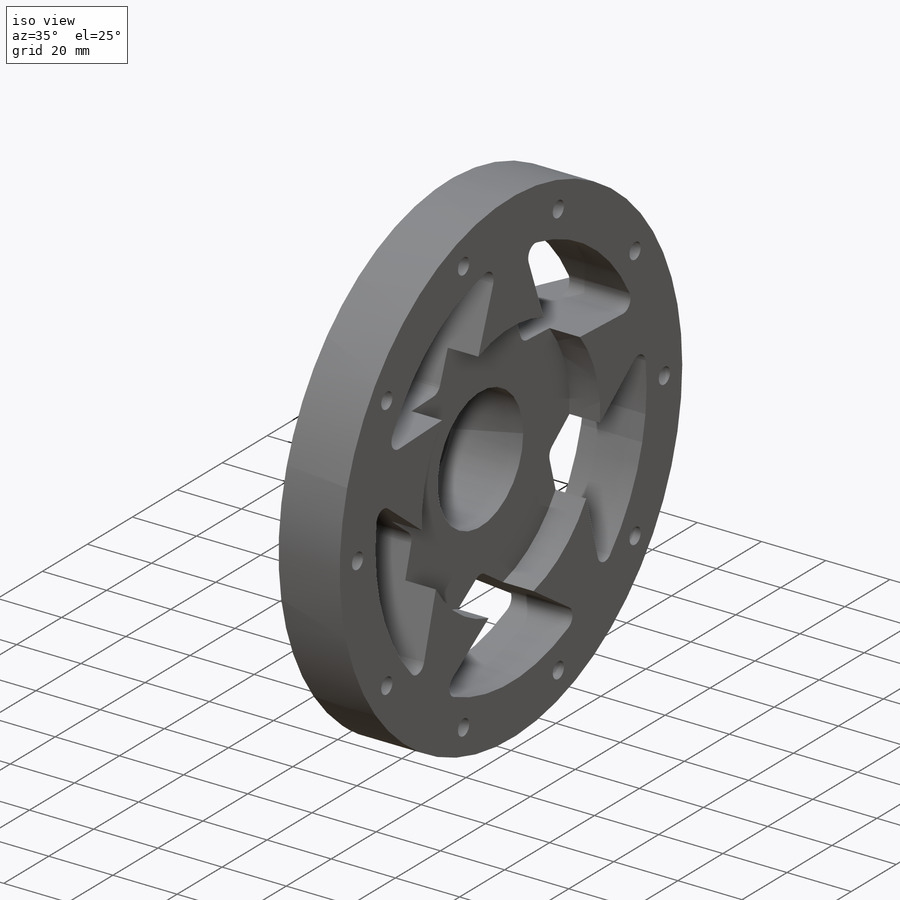
[diagram: iso view]
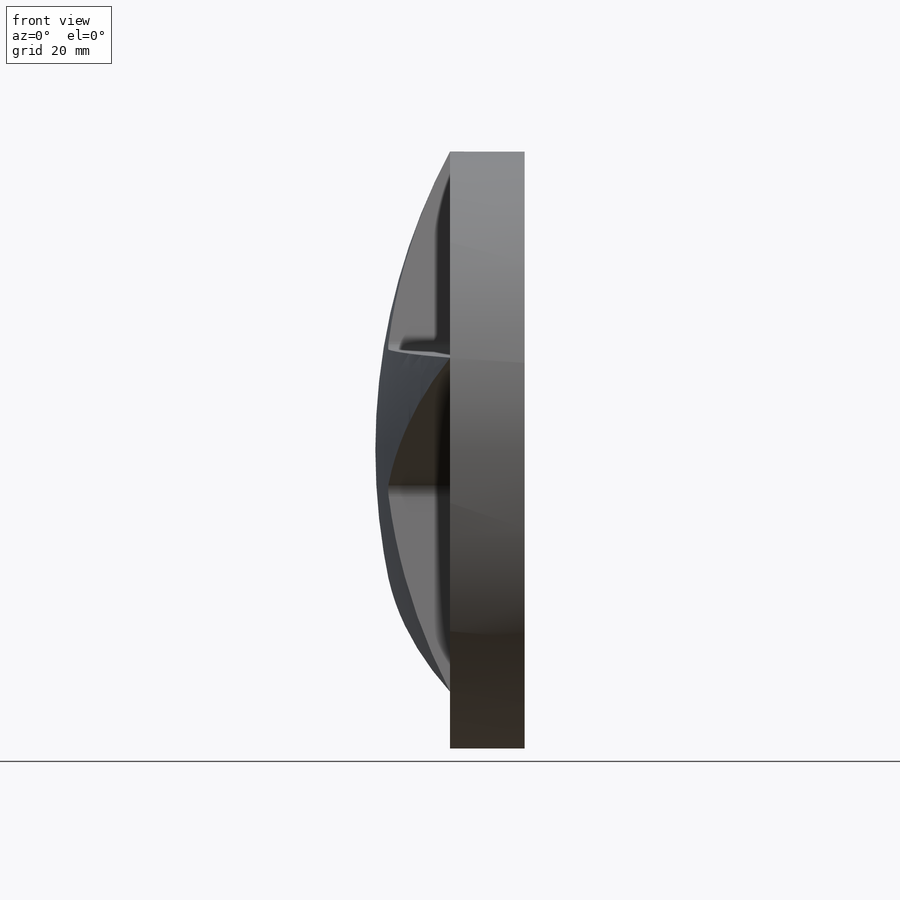
[diagram: front view]
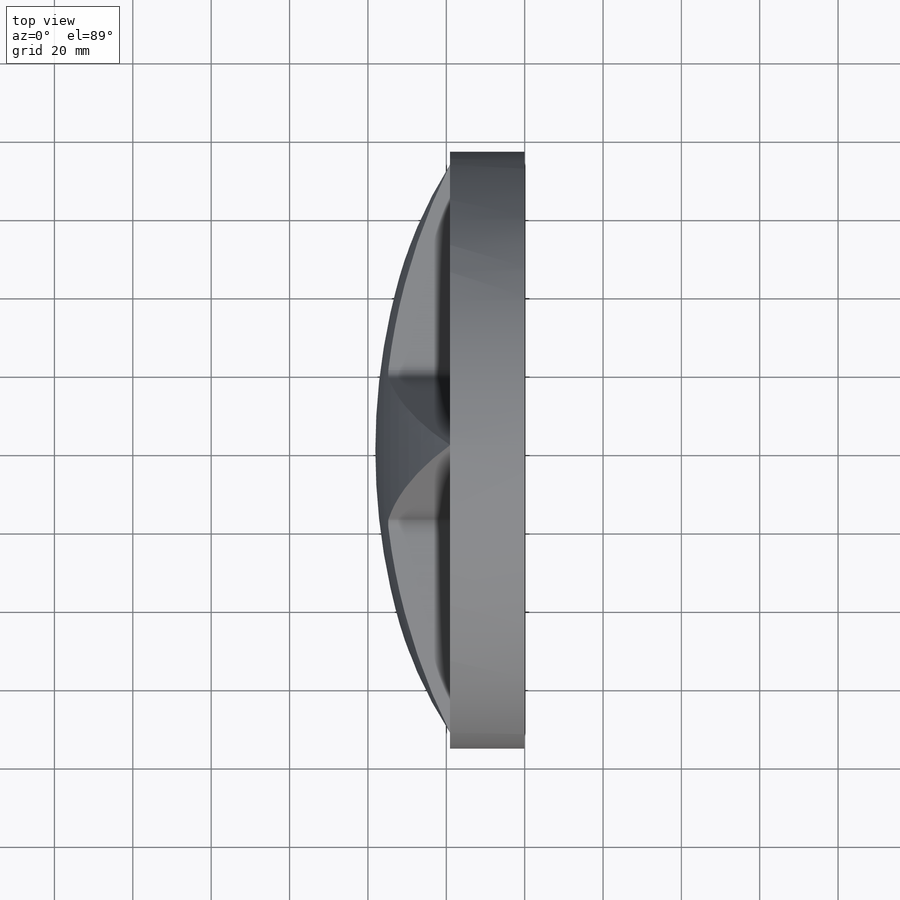
[diagram: top view]
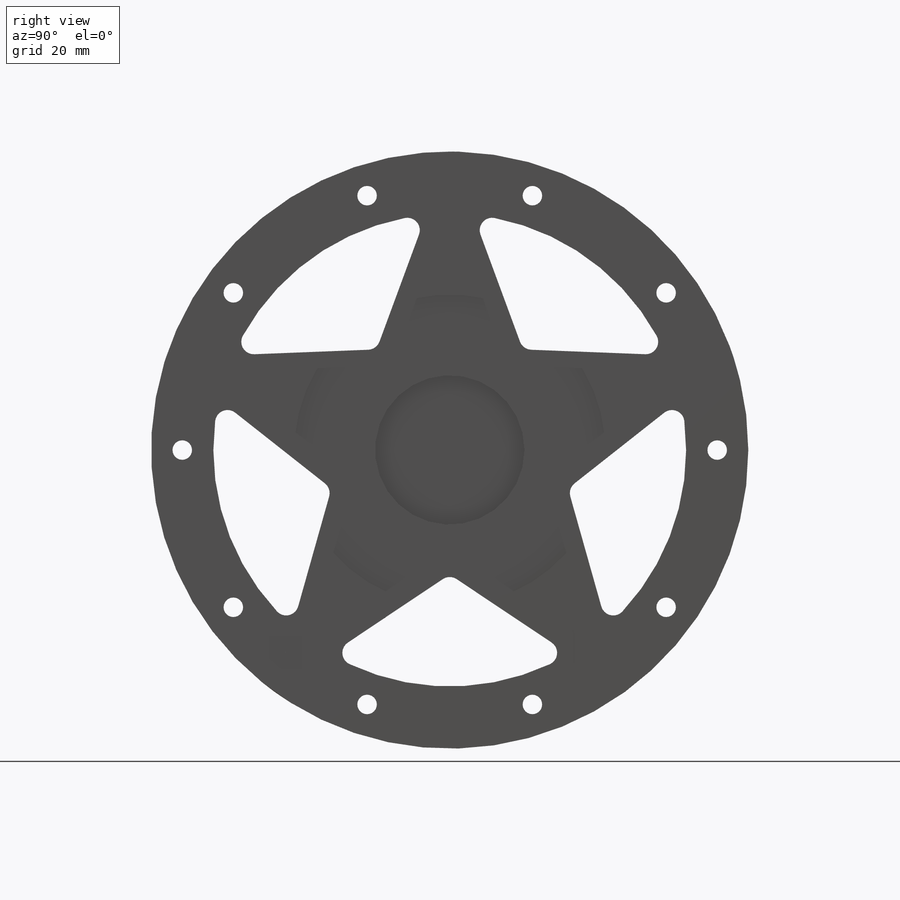
[diagram: right view]
SOLIDWORKS PART (.sldprt)
format: sldprt  version: not decoded by parser v0  size: 407,040 bytes
history: native  units: mm
features: sketch x5, cut_extrude x4, pattern_circular x3, fillet x2, material x1, revolve x1 (+13 scaffold rows collapsed)
feature tree (29):
  scaffold x13  (default folders/planes/origin — collapsed)
  material  "6061-T6 (SS)"
  sketch  "Sketch1"  dims[c1.D5=~9.668273mm c1.D1=19.05mm c1.D2=38.1mm c1.D3=152.4mm c1.D4=19.05mm c2.D5=~5.135526mm c2.D1=38.1mm c3.D5=~20.798767mm c3.D6=~13.023489mm c4.D5=12.7mm c4.D6=~1.21812mm c5.D5=31.75mm]
  revolve  "Revolve1"  Angle=360deg
  sketch  "Sketch3"  dims[c1.D1=~38.230891mm c2.D1=112.5deg c2.D2=31.75mm]
  cut_extrude  "Cut-Extrude2"  Depth=19.05mm
  fillet  "Fillet1"  Radius=3.175mm
  pattern_circular  "CirPattern1"  Count=5 Angle=360deg
  sketch  "Sketch4"  dims[D1=~35.386883mm]
  cut_extrude  "Cut-Extrude3"  [1 undecoded]
  fillet  "Fillet2"  Radius=3.175mm
  pattern_circular  "CirPattern2"  Count=5 Angle=360deg
  sketch  "Sketch5"  dims[c1.D2=76.2mm c1.D3=4.9784mm c1.D1=~66.011941mm c2.D1=36.0deg c2.D2=68.2625mm]
  cut_extrude  "Cut-Extrude4"  [1 undecoded]
  pattern_circular  "CirPattern3"  Count=5 Angle=360deg
  sketch  "Sketch6"  dims[D1=79.375mm D2=3.175mm D3=3.175mm D4=3.175mm D5=3.175mm D6=3.175mm]
  cut_extrude  "Cut-Extrude6"  Depth=9.525mm
decode coverage: 13 of 15 modeling features carry decoded parameters
note: ~ marks probable driven/reference dimensions
note: 2 parameter values undecoded
note: suppression state not decoded; provenance and decode notes live in map.json
